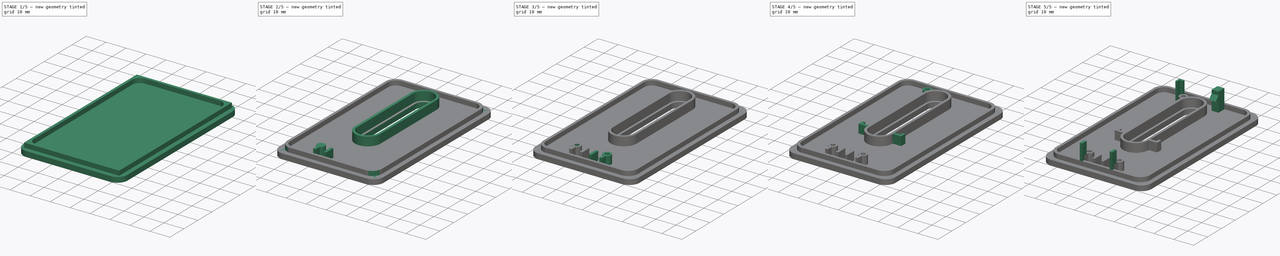
[diagram: build sequence overview — one tinted view per stage of 5, left to right]
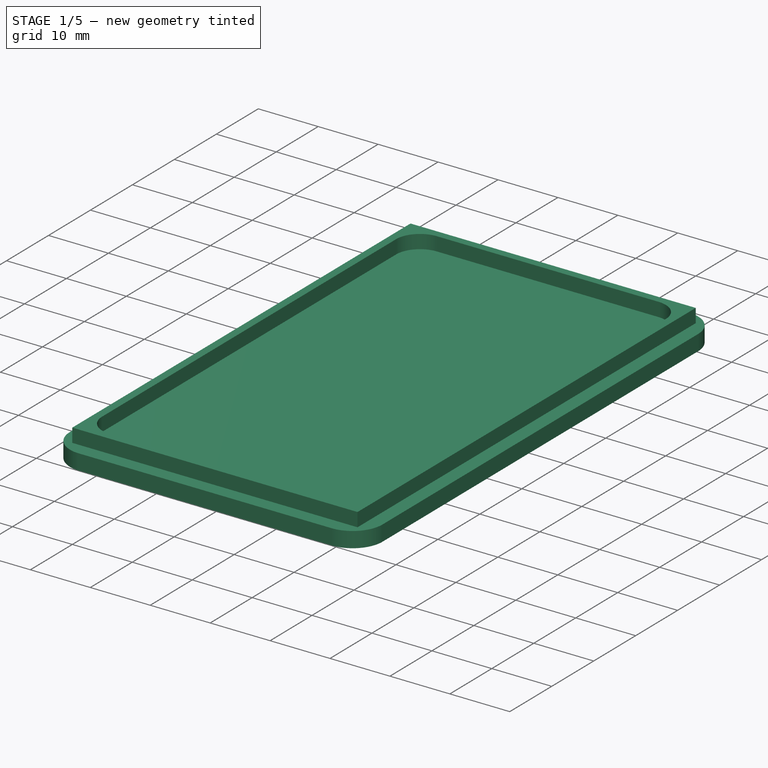
[diagram: stage 1 of 5 — iso view after this stage's code; geometry added in this stage tinted green]
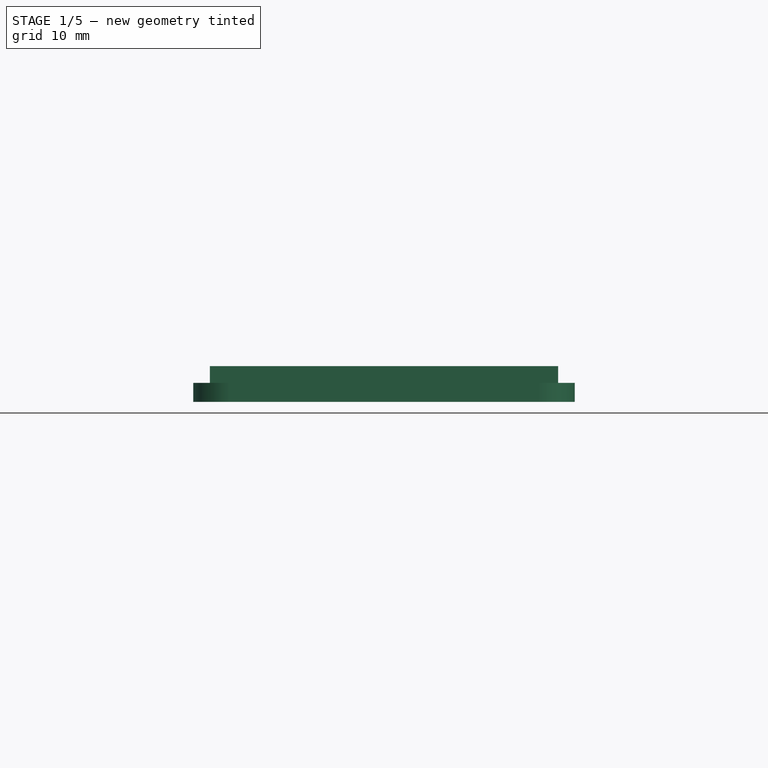
[diagram: stage 1 of 5 — front view after this stage's code; geometry added in this stage tinted green]
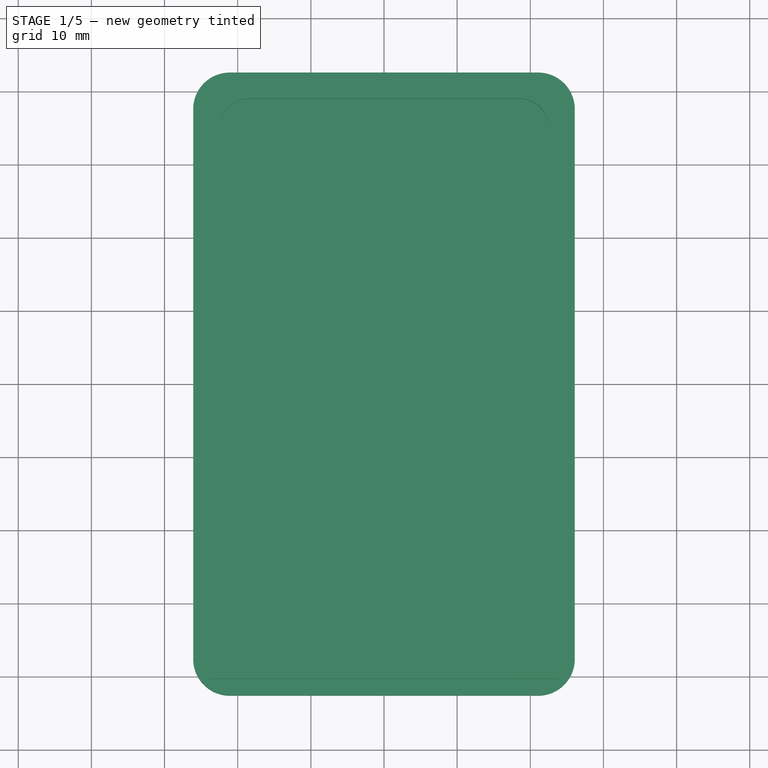
[diagram: stage 1 of 5 — top view after this stage's code; geometry added in this stage tinted green]
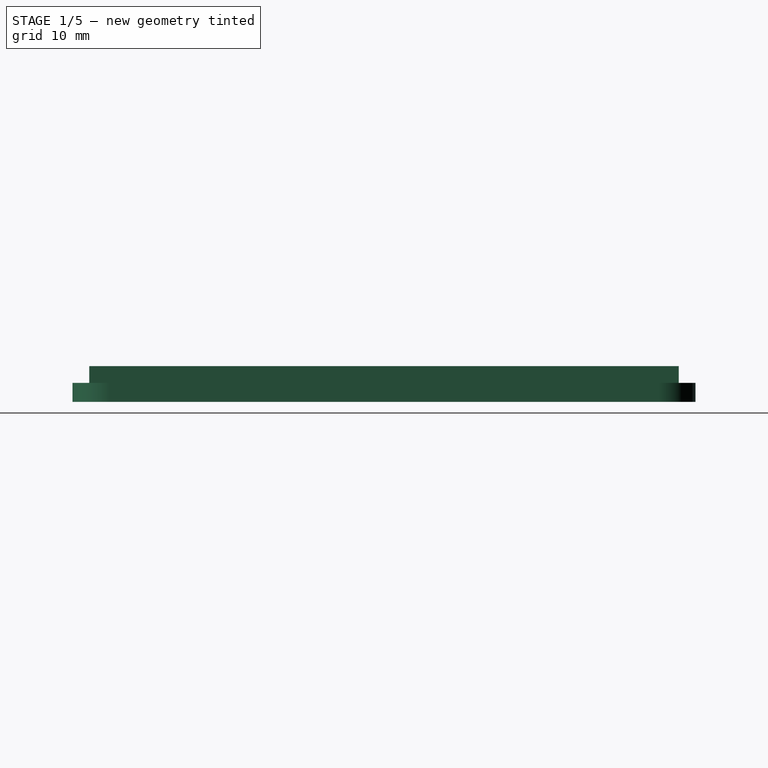
[diagram: stage 1 of 5 — right view after this stage's code; geometry added in this stage tinted green]
FCSTD DOCUMENT  (FreeCAD 0.20R29410 (Git))
Label: Front
License: All rights reserved
LicenseURL: http://en.wikipedia.org/wiki/All_rights_reserved
objects: Sketcher::SketchObject×10, PartDesign::Pad×9, PartDesign::Fillet×3, PartDesign::Mirrored×3, PartDesign::Hole×3, PartDesign::Pocket×1, PartDesign::Plane×1, PartDesign::Body×1
note: 47 computed .brp shape members not serialized (recipe doc carries the construction recipe); baked Part::Feature solids carry a one-line shape summary decoded from their .brp

FEATURE [Sketcher::SketchObject] Sketch
  FullyConstrained = true
  MapMode = 5
  Support = -> [XY_Plane]
  sketch-geometry (4):
    g0: LineSegment StartX=-26.08 StartY=42.58 StartZ=0 EndX=26.08 EndY=42.58 EndZ=0
    g1: LineSegment StartX=26.08 StartY=42.58 StartZ=0 EndX=26.08 EndY=-42.58 EndZ=0
    g2: LineSegment StartX=26.08 StartY=-42.58 StartZ=0 EndX=-26.08 EndY=-42.58 EndZ=0
    g3: LineSegment StartX=-26.08 StartY=-42.58 StartZ=0 EndX=-26.08 EndY=42.58 EndZ=0
  constraints (11):
    c: Coincident(g0,g1)
    c: Coincident(g1,g2)
    c: Coincident(g2,g3)
    c: Coincident(g3,g0)
    c: Horizontal(g0)
    c: Horizontal(g2)
    c: Vertical(g1)
    c: Vertical(g3)
    c: Symmetric(g1,g0,g-1)
    c: DistanceX(g0,g0) = 52.16
    c: DistanceY(g1,g1) = 85.16
FEATURE [PartDesign::Pad] Pad
  Direction = (0,0,1)
  Length = 2.6
  Length2 = 10
  Profile = -> Sketch
  ReferenceAxis = -> Sketch [N_Axis]
  Type = 0
FEATURE [Sketcher::SketchObject] Sketch001
  FullyConstrained = true
  MapMode = 5
  Placement = pos=(0,0,2.6) rot=(0,0,1;0rad)
  Support = -> [Pad]
  sketch-geometry (16):
    g0: LineSegment StartX=-23.8 StartY=40.3 StartZ=0 EndX=23.8 EndY=40.3 EndZ=0
    g1: LineSegment StartX=23.8 StartY=40.3 StartZ=0 EndX=23.8 EndY=-40.3 EndZ=0
    g2: LineSegment StartX=23.8 StartY=-40.3 StartZ=0 EndX=-23.8 EndY=-40.3 EndZ=0
    g3: LineSegment StartX=-23.8 StartY=-40.3 StartZ=0 EndX=-23.8 EndY=40.3 EndZ=0
    g4: LineSegment StartX=-22.5 StartY=39 StartZ=0 EndX=22.5 EndY=39 EndZ=0
    g5: LineSegment StartX=22.5 StartY=39 StartZ=0 EndX=22.5 EndY=-39 EndZ=0
    g6: LineSegment StartX=22.5 StartY=-39 StartZ=0 EndX=-22.5 EndY=-39 EndZ=0
    g7: LineSegment StartX=-22.5 StartY=-39 StartZ=0 EndX=-22.5 EndY=39 EndZ=0
    g8: LineSegment StartX=-23.8 StartY=40.3 StartZ=0 EndX=-22.5 EndY=40.3 EndZ=0
    g9: LineSegment StartX=-22.5 StartY=40.3 StartZ=0 EndX=-22.5 EndY=39 EndZ=0
    g10: LineSegment StartX=-22.5 StartY=39 StartZ=0 EndX=-23.8 EndY=39 EndZ=0
    g11: LineSegment StartX=-23.8 StartY=39 StartZ=0 EndX=-23.8 EndY=40.3 EndZ=0
    g12: LineSegment StartX=22.5 StartY=-39 StartZ=0 EndX=23.8 EndY=-39 EndZ=0
    g13: LineSegment StartX=23.8 StartY=-39 StartZ=0 EndX=23.8 EndY=-40.3 EndZ=0
    g14: LineSegment StartX=23.8 StartY=-40.3 StartZ=0 EndX=22.5 EndY=-40.3 EndZ=0
    g15: LineSegment StartX=22.5 StartY=-40.3 StartZ=0 EndX=22.5 EndY=-39 EndZ=0
  constraints (43):
    c: Coincident(g0,g1)
    c: Coincident(g1,g2)
    c: Coincident(g2,g3)
    c: Coincident(g3,g0)
    c: Horizontal(g0)
    c: Horizontal(g2)
    c: Vertical(g1)
    c: Vertical(g3)
    c: Coincident(g4,g5)
    c: Coincident(g5,g6)
    c: Coincident(g6,g7)
    c: Coincident(g7,g4)
    c: Horizontal(g4)
    c: Horizontal(g6)
    c: Vertical(g5)
    c: Vertical(g7)
    c: Coincident(g8,g9)
    c: Coincident(g9,g10)
    c: Coincident(g10,g11)
    c: Coincident(g11,g8)
    c: Horizontal(g8)
    c: Horizontal(g10)
    c: Vertical(g9)
    c: Vertical(g11)
    c: Coincident(g8,g0)
    c: Coincident(g9,g4)
    c: Coincident(g12,g13)
    c: Coincident(g13,g14)
    c: Coincident(g14,g15)
    c: Coincident(g15,g12)
    c: Horizontal(g12)
    c: Horizontal(g14)
    c: Vertical(g13)
    c: Vertical(g15)
    c: Coincident(g12,g5)
    c: Coincident(g13,g1)
    c: Equal(g12,g15)
    c: Equal(g15,g9)
    c: Equal(g9,g10)
    c: DistanceX(g10,g10) = 1.3
    c: Symmetric(g4,g5,g-1)
    c: DistanceY(g1,g1) = 80.6
    c: DistanceX(g0,g0) = 47.6
FEATURE [PartDesign::Pad] Pad001
  BaseFeature = -> Pad
  Direction = (0,0,1)
  Length = 2.3
  Length2 = 10
  Profile = -> Sketch001
  ReferenceAxis = -> Sketch001 [N_Axis]
  Type = 0
FEATURE [PartDesign::Fillet] Fillet
  Base = -> Pad001 [Edge8,Edge5,Edge2,Edge1]
  BaseFeature = -> Pad001
  Radius = 5
  SupportTransform = false
  UseAllEdges = false
FEATURE [PartDesign::Fillet] Fillet001
  Base = -> Fillet [Edge41,Edge44,Edge46,Edge42]
  BaseFeature = -> Fillet
  Radius = 4
  SupportTransform = false
  UseAllEdges = false
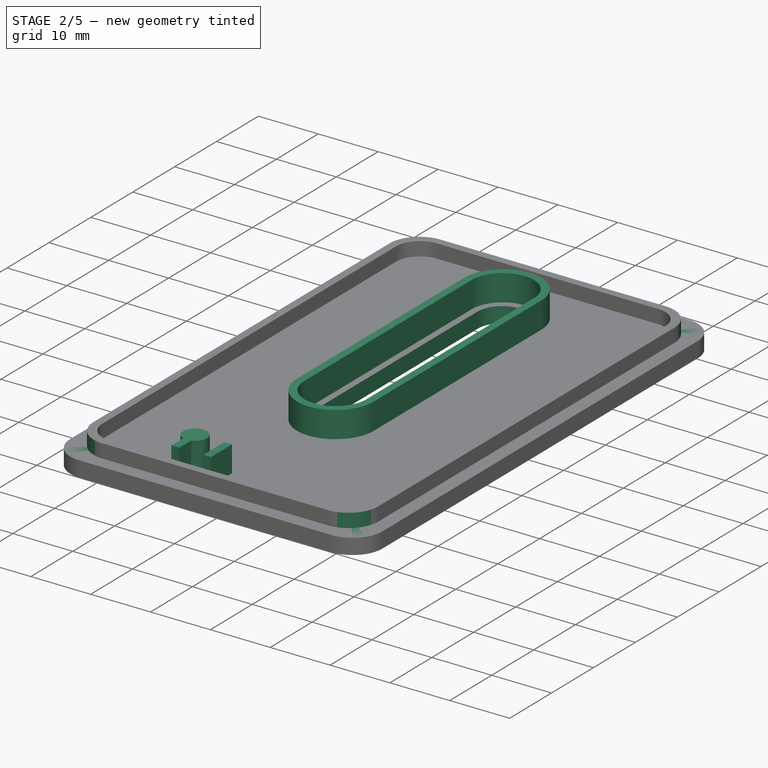
[diagram: stage 2 of 5 — iso view after this stage's code; geometry added in this stage tinted green]
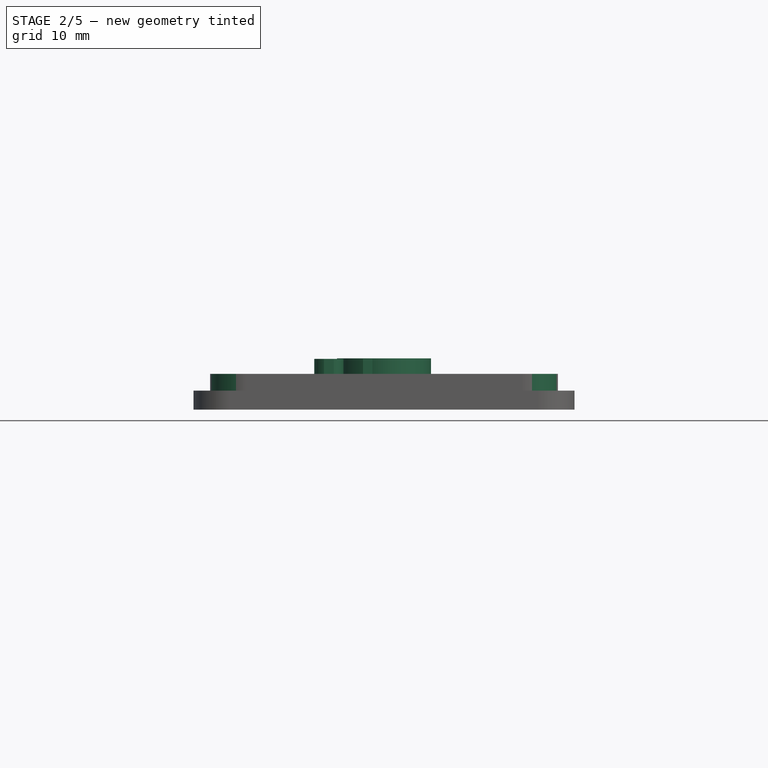
[diagram: stage 2 of 5 — front view after this stage's code; geometry added in this stage tinted green]
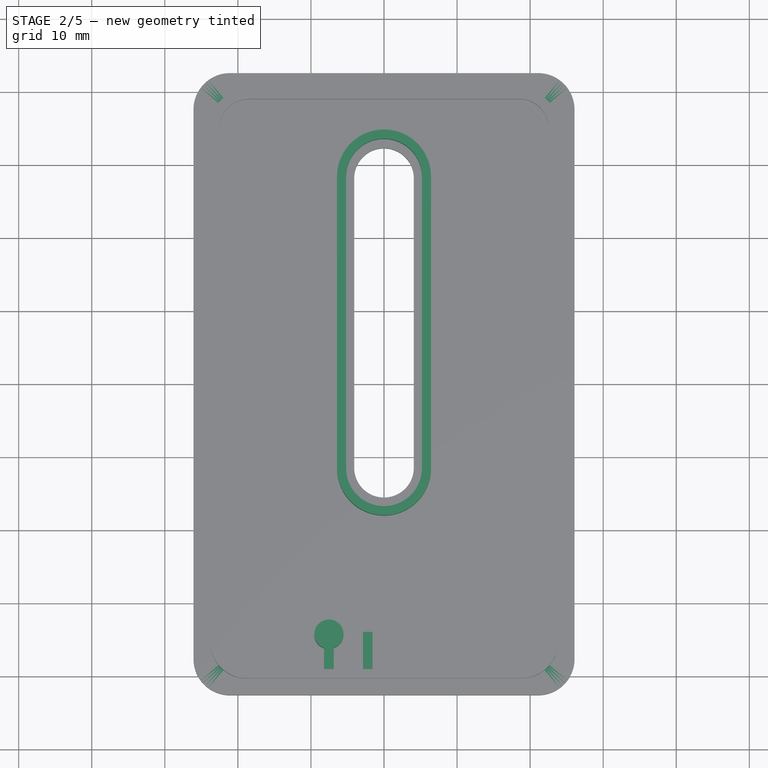
[diagram: stage 2 of 5 — top view after this stage's code; geometry added in this stage tinted green]
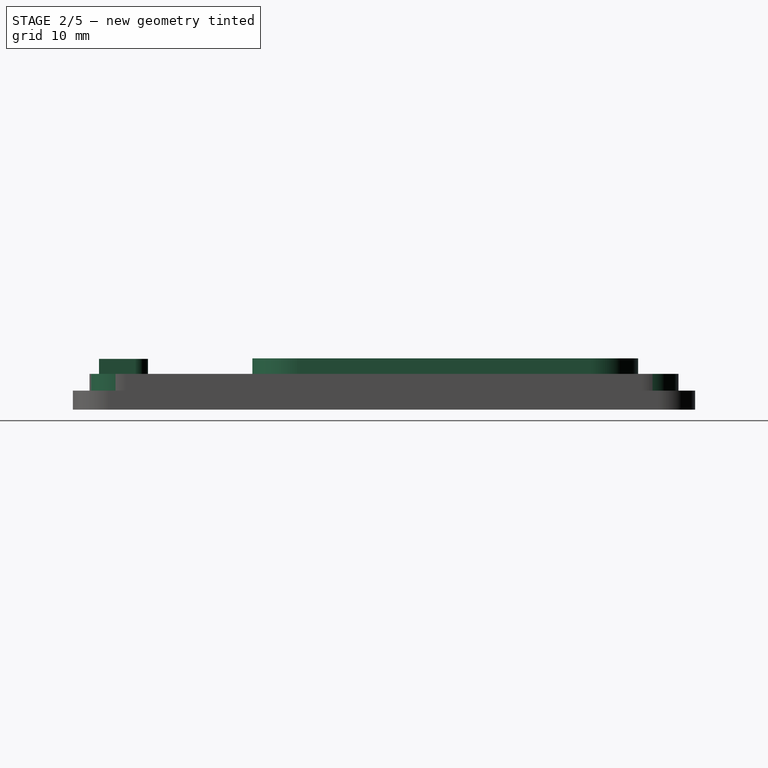
[diagram: stage 2 of 5 — right view after this stage's code; geometry added in this stage tinted green]
FEATURE [PartDesign::Fillet] Fillet002
  Base = -> Fillet001 [Edge34,Edge32,Edge30,Edge29]
  BaseFeature = -> Fillet001
  Radius = 5
  SupportTransform = false
  UseAllEdges = false
FEATURE [Sketcher::SketchObject] Sketch002
  ExternalGeometry = -> [Fillet002]
  FullyConstrained = true
  MapMode = 5
  Placement = pos=(0,0,2.6) rot=(0,0,1;0rad)
  Support = -> [Fillet002]
  sketch-geometry (7):
    g0: LineSegment StartX=-4.08 StartY=28.2 StartZ=0 EndX=4.08 EndY=28.2 EndZ=0
    g1: LineSegment StartX=4.08 StartY=28.2 StartZ=0 EndX=4.08 EndY=-11.44 EndZ=0
    g2: LineSegment StartX=4.08 StartY=-11.44 StartZ=0 EndX=-4.08 EndY=-11.44 EndZ=0
    g3: LineSegment StartX=-4.08 StartY=-11.44 StartZ=0 EndX=-4.08 EndY=28.2 EndZ=0
    g4: ArcOfCircle CenterX=2e-16 CenterY=28.2 CenterZ=0 NormalX=0 NormalY=0 NormalZ=1 AngleXU=0 Radius=4.08 StartAngle=0 EndAngle=3.14159
    g5: ArcOfCircle CenterX=-3e-16 CenterY=-11.44 CenterZ=0 NormalX=0 NormalY=0 NormalZ=1 AngleXU=0 Radius=4.08 StartAngle=3.14159 EndAngle=6.28319
    g6: GeomPoint X=0 Y=32.28 Z=0
  constraints (19):
    c: Coincident(g0,g1)
    c: Coincident(g1,g2)
    c: Coincident(g2,g3)
    c: Coincident(g3,g0)
    c: Horizontal(g2)
    c: Vertical(g1)
    c: Vertical(g3)
    c: Symmetric(g0,g0,g-2)
    c: PointOnObject(g4,g0)
    c: Coincident(g4,g0)
    c: Coincident(g4,g0)
    c: PointOnObject(g5,g2)
    c: Coincident(g5,g2)
    c: Coincident(g5,g1)
    c: DistanceX(g0,g0) = 8.16
    c: DistanceY(g1,g1) = 39.64
    c: PointOnObject(g6,g4)
    c: PointOnObject(g6,g-2)
    c: DistanceY(g6,g-3) = 10.3
FEATURE [PartDesign::Pocket] Pocket
  BaseFeature = -> Fillet002
  Direction = (0,0,-1)
  Length = 5
  Length2 = 5
  Profile = -> Sketch002
  ReferenceAxis = -> Sketch002 [N_Axis]
  Type = 0
FEATURE [Sketcher::SketchObject] Sketch003
  ExternalGeometry = -> [Pocket]
  FullyConstrained = true
  MapMode = 5
  Placement = pos=(0,0,2.6) rot=(0,0,1;0rad)
  Support = -> [Pocket]
  sketch-geometry (21):
    g0: LineSegment StartX=-6.43 StartY=28.35 StartZ=0 EndX=6.43 EndY=28.35 EndZ=0
    g1: LineSegment StartX=6.43 StartY=28.35 StartZ=0 EndX=6.43 EndY=-11.59 EndZ=0
    g2: LineSegment StartX=6.43 StartY=-11.59 StartZ=0 EndX=-6.43 EndY=-11.59 EndZ=0
    g3: LineSegment StartX=-6.43 StartY=-11.59 StartZ=0 EndX=-6.43 EndY=28.35 EndZ=0
    g4: ArcOfCircle CenterX=-1.98e-14 CenterY=-11.59 CenterZ=0 NormalX=0 NormalY=0 NormalZ=1 AngleXU=0 Radius=6.43 StartAngle=3.14159 EndAngle=6.28319
    g5: LineSegment StartX=-6.43 StartY=28.35 StartZ=0 EndX=-5.18 EndY=28.35 EndZ=0
    g6: LineSegment StartX=-5.18 StartY=28.35 StartZ=0 EndX=-5.18 EndY=27.1 EndZ=0
    g7: LineSegment StartX=-5.18 StartY=27.1 StartZ=0 EndX=-6.43 EndY=27.1 EndZ=0
    g8: LineSegment StartX=-6.43 StartY=27.1 StartZ=0 EndX=-6.43 EndY=28.35 EndZ=0
    g9: LineSegment StartX=6.43 StartY=-11.59 StartZ=0 EndX=5.18 EndY=-11.59 EndZ=0
    g10: LineSegment StartX=5.18 StartY=-11.59 StartZ=0 EndX=5.18 EndY=-10.34 EndZ=0
    g11: LineSegment StartX=5.18 StartY=-10.34 StartZ=0 EndX=6.43 EndY=-10.34 EndZ=0
    g12: LineSegment StartX=6.43 StartY=-10.34 StartZ=0 EndX=6.43 EndY=-11.59 EndZ=0
    g13: Circle CenterX=-1.95e-14 CenterY=8.38 CenterZ=0 NormalX=0 NormalY=0 NormalZ=1 AngleXU=0 Radius=20.2356
    g14: GeomPoint X=0 Y=-18.02 Z=0
    g15: GeomPoint X=0 Y=34.78 Z=0
    g16: LineSegment StartX=-5.18 StartY=28.35 StartZ=0 EndX=-5.18 EndY=-11.59 EndZ=0
    g17: LineSegment StartX=5.18 StartY=-11.59 StartZ=0 EndX=5.18 EndY=28.35 EndZ=0
    g18: ArcOfCircle CenterX=-1.99e-14 CenterY=28.35 CenterZ=0 NormalX=0 NormalY=0 NormalZ=1 AngleXU=0 Radius=6.43 StartAngle=0 EndAngle=3.14159
    g19: ArcOfCircle CenterX=-2e-14 CenterY=28.35 CenterZ=0 NormalX=0 NormalY=0 NormalZ=1 AngleXU=0 Radius=5.18 StartAngle=6e-16 EndAngle=3.14159
    g20: ArcOfCircle CenterX=-1.96e-14 CenterY=-11.59 CenterZ=0 NormalX=0 NormalY=0 NormalZ=1 AngleXU=0 Radius=5.18 StartAngle=3.14159 EndAngle=6.28319
  constraints (58):
    c: Coincident(g0,g1)
    c: Coincident(g1,g2)
    c: Coincident(g2,g3)
    c: Coincident(g3,g0)
    c: Horizontal(g0)
    c: Horizontal(g2)
    c: Vertical(g1)
    c: Vertical(g3)
    c: PointOnObject(g4,g2)
    c: Coincident(g4,g3)
    c: Coincident(g4,g1)
    c: Coincident(g5,g6)
    c: Coincident(g6,g7)
    c: Coincident(g7,g8)
    c: Coincident(g8,g5)
    c: Horizontal(g5)
    c: Horizontal(g7)
    c: Vertical(g6)
    c: Vertical(g8)
    c: Coincident(g5,g3)
    c: Coincident(g9,g10)
    c: Coincident(g10,g11)
    c: Coincident(g11,g12)
    c: Coincident(g12,g9)
    c: Horizontal(g9)
    c: Horizontal(g11)
    c: Vertical(g10)
    c: Vertical(g12)
    c: Coincident(g9,g1)
    c: Equal(g11,g10)
    c: Equal(g10,g6)
    c: Equal(g6,g7)
    c: DistanceX(g7,g7) = 1.25
    c: PointOnObject(g-3,g13)
    c: PointOnObject(g-4,g13)
    c: PointOnObject(g-4,g13)
    c: DistanceX(g0,g0) = 12.86
    c: PointOnObject(g14,g4)
    c: PointOnObject(g15,g-2)
    c: PointOnObject(g14,g-2)
    c: DistanceY(g14,g15) = 52.8
    c: Coincident(g16,g5)
    c: PointOnObject(g16,g2)
    c: Vertical(g16)
    c: Coincident(g17,g9)
    c: PointOnObject(g17,g0)
    c: Vertical(g17)
    c: PointOnObject(g18,g0)
    c: Coincident(g18,g3)
    c: Coincident(g18,g1)
    c: PointOnObject(g19,g0)
    c: Coincident(g19,g16)
    c: Coincident(g19,g17)
    c: Symmetric(g16,g17,g13)
    c: PointOnObject(g20,g2)
    c: Coincident(g20,g16)
    c: Coincident(g20,g17)
    c: PointOnObject(g15,g18)
FEATURE [PartDesign::Pad] Pad002
  BaseFeature = -> Pocket
  Direction = (0,0,1)
  Length = 4.42
  Length2 = 10
  Profile = -> Sketch003
  ReferenceAxis = -> Sketch003 [N_Axis]
  Type = 0
FEATURE [Sketcher::SketchObject] Sketch004
  ExternalGeometry = -> [Pad002]
  FullyConstrained = true
  MapMode = 5
  Placement = pos=(0,0,2.6) rot=(0,0,1;0rad)
  Support = -> [Pad002]
  sketch-geometry (9):
    g0: ArcOfCircle CenterX=-7.545 CenterY=-34.3 CenterZ=0 NormalX=0 NormalY=0 NormalZ=1 AngleXU=0 Radius=2 StartAngle=5.05134 EndAngle=10.6566
    g1: LineSegment StartX=-8.21 StartY=-36.1862 StartZ=0 EndX=-6.88 EndY=-36.1862 EndZ=0
    g2: LineSegment StartX=-6.88 StartY=-36.1862 StartZ=0 EndX=-6.88 EndY=-39 EndZ=0
    g3: LineSegment StartX=-6.88 StartY=-39 StartZ=0 EndX=-8.21 EndY=-39 EndZ=0
    g4: LineSegment StartX=-8.21 StartY=-39 StartZ=0 EndX=-8.21 EndY=-36.1862 EndZ=0
    g5: LineSegment StartX=-2.88 StartY=-39 StartZ=0 EndX=-1.58 EndY=-39 EndZ=0
    g6: LineSegment StartX=-1.58 StartY=-39 StartZ=0 EndX=-1.58 EndY=-34 EndZ=0
    g7: LineSegment StartX=-1.58 StartY=-34 StartZ=0 EndX=-2.88 EndY=-34 EndZ=0
    g8: LineSegment StartX=-2.88 StartY=-34 StartZ=0 EndX=-2.88 EndY=-39 EndZ=0
  constraints (28):
    c: Coincident(g1,g2)
    c: Coincident(g2,g3)
    c: Coincident(g3,g4)
    c: Coincident(g4,g1)
    c: Horizontal(g1)
    c: Horizontal(g3)
    c: Vertical(g2)
    c: Vertical(g4)
    c: Coincident(g0,g1)
    c: Coincident(g0,g1)
    c: PointOnObject(g2,g-3)
    c: DistanceX(g1,g1) = 1.33
    c: Diameter(g0) = 4
    c: DistanceY(g-4,g0) = 6
    c: DistanceY(g-4,g-3) = 1.3
    c: Coincident(g5,g6)
    c: Coincident(g6,g7)
    c: Coincident(g7,g8)
    c: Coincident(g8,g5)
    c: Horizontal(g5)
    c: Horizontal(g7)
    c: Vertical(g6)
    c: Vertical(g8)
    c: PointOnObject(g5,g-3)
    c: DistanceX(g7,g7) = 1.3
    c: DistanceY(g8,g8) = 5
    c: DistanceX(g0,g7) = 4
    c: DistanceX(g6,g-1) = 1.58
FEATURE [PartDesign::Pad] Pad003
  BaseFeature = -> Pad002
  Direction = (0,0,1)
  Length = 4.35
  Length2 = 10
  Profile = -> Sketch004
  ReferenceAxis = -> Sketch004 [N_Axis]
  Type = 0
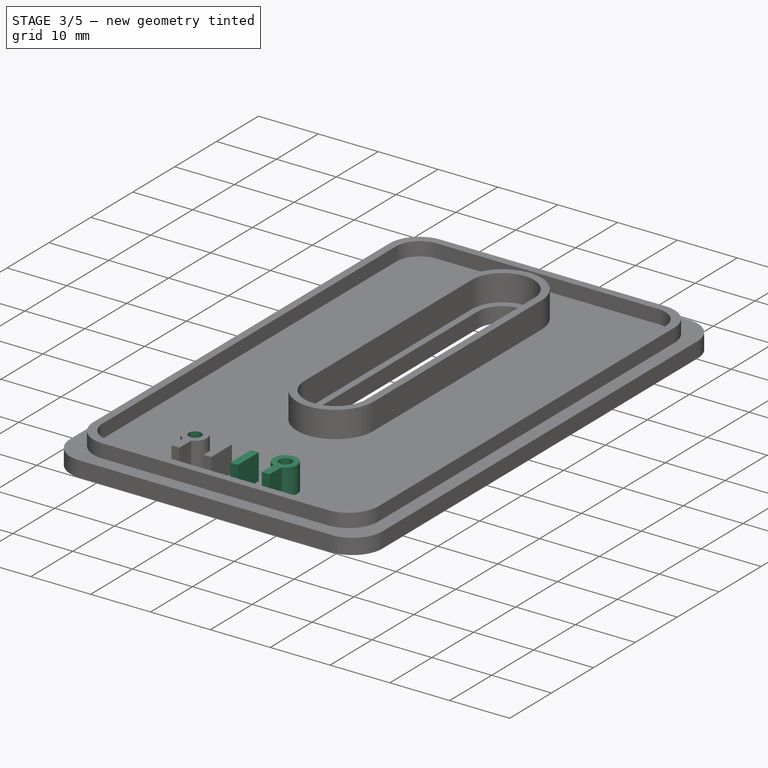
[diagram: stage 3 of 5 — iso view after this stage's code; geometry added in this stage tinted green]
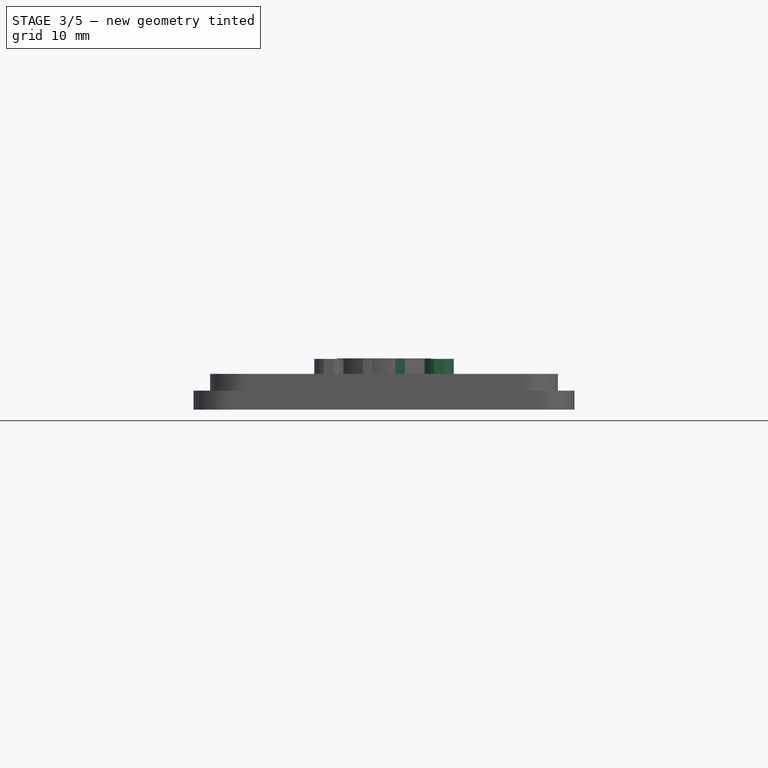
[diagram: stage 3 of 5 — front view after this stage's code; geometry added in this stage tinted green]
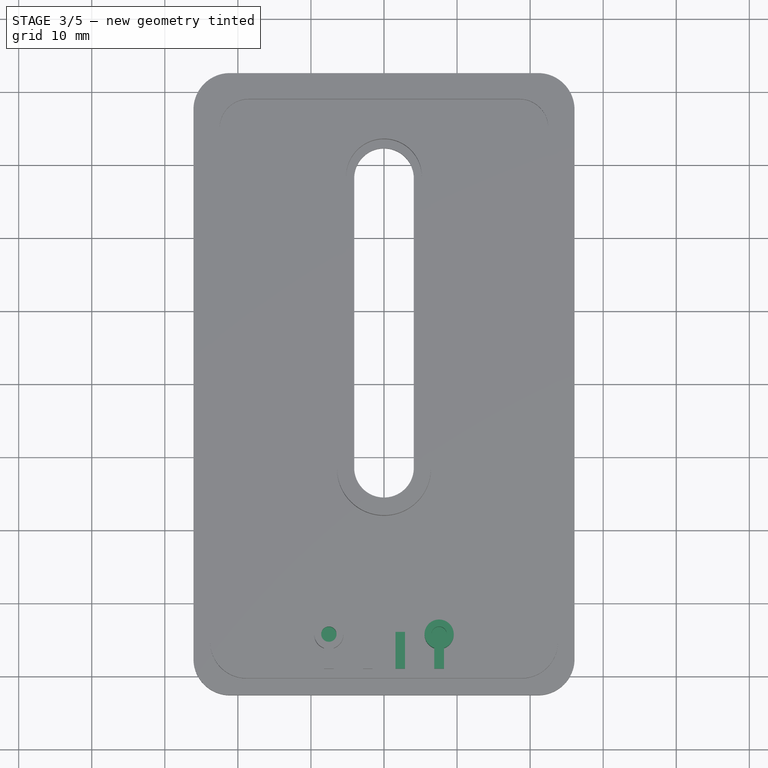
[diagram: stage 3 of 5 — top view after this stage's code; geometry added in this stage tinted green]
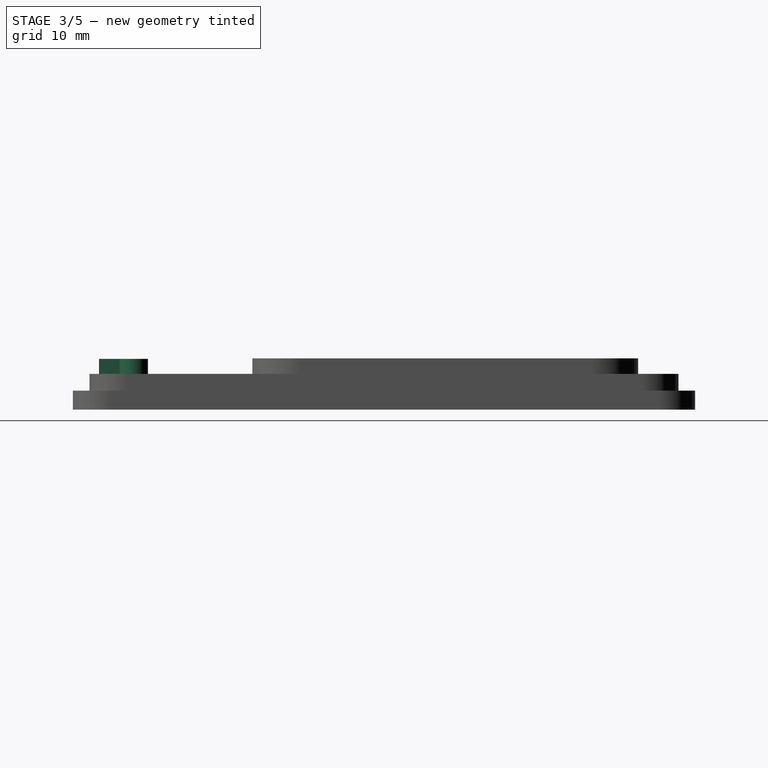
[diagram: stage 3 of 5 — right view after this stage's code; geometry added in this stage tinted green]
FEATURE [PartDesign::Mirrored] Mirrored
  BaseFeature = -> Pad003
  MirrorPlane = -> Sketch004 [V_Axis]
  Originals = -> [Pad003]
FEATURE [PartDesign::Hole] Hole
  BaseFeature = -> Mirrored
  CustomThreadClearance = 0
  Depth = 3
  DepthType = 0
  Diameter = 2.1
  DrillForDepth = false
  DrillPoint = 0
  DrillPointAngle = 118
  HoleCutCountersinkAngle = 90
  HoleCutCustomValues = false
  HoleCutDepth = 0
  HoleCutDiameter = 6.1
  HoleCutType = 0
  ModelThread = false
  Profile = -> Mirrored [Face39]
  Tapered = false
  TaperedAngle = 90
  ThreadClass = 0
  ThreadDepth = 3
  ThreadDepthType = 0
  ThreadDirection = 0
  ThreadFit = 0
  ThreadSize = 5
  ThreadType = 1
  Threaded = false
  UseCustomThreadClearance = false
FEATURE [PartDesign::Hole] Hole001
  BaseFeature = -> Hole
  CustomThreadClearance = 0
  Depth = 3
  DepthType = 0
  Diameter = 2.1
  DrillForDepth = false
  DrillPoint = 0
  DrillPointAngle = 118
  HoleCutCountersinkAngle = 90
  HoleCutCustomValues = false
  HoleCutDepth = 0
  HoleCutDiameter = 6.1
  HoleCutType = 0
  ModelThread = false
  Profile = -> Hole [Face29]
  Tapered = false
  TaperedAngle = 90
  ThreadClass = 0
  ThreadDepth = 3
  ThreadDepthType = 0
  ThreadDirection = 0
  ThreadFit = 0
  ThreadSize = 5
  ThreadType = 1
  Threaded = false
  UseCustomThreadClearance = false
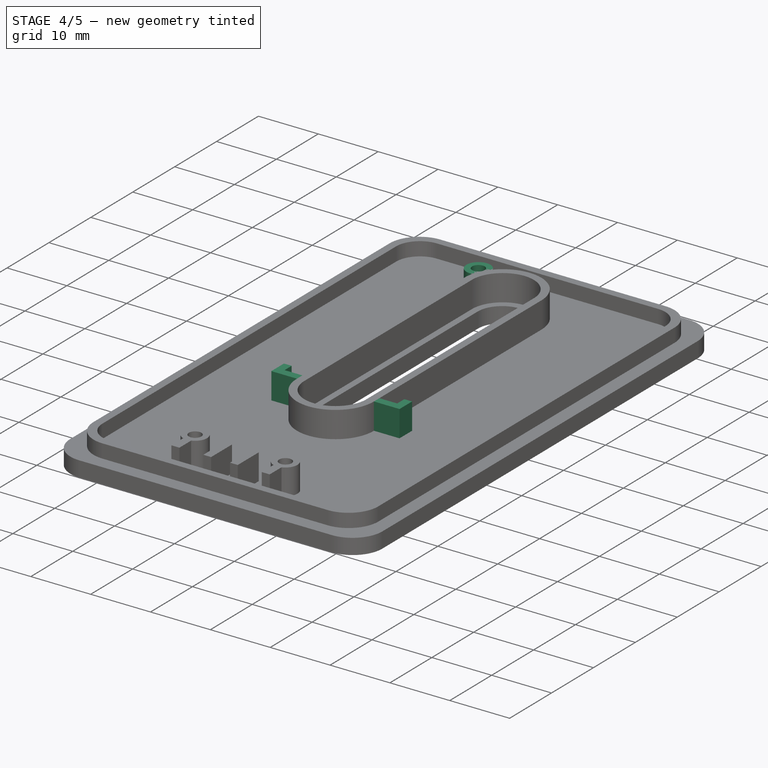
[diagram: stage 4 of 5 — iso view after this stage's code; geometry added in this stage tinted green]
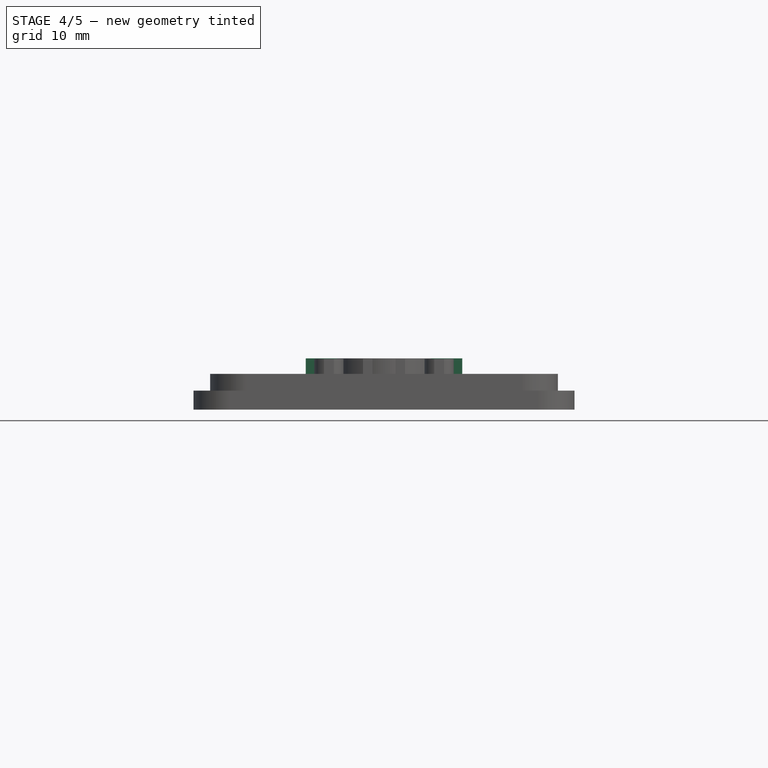
[diagram: stage 4 of 5 — front view after this stage's code; geometry added in this stage tinted green]
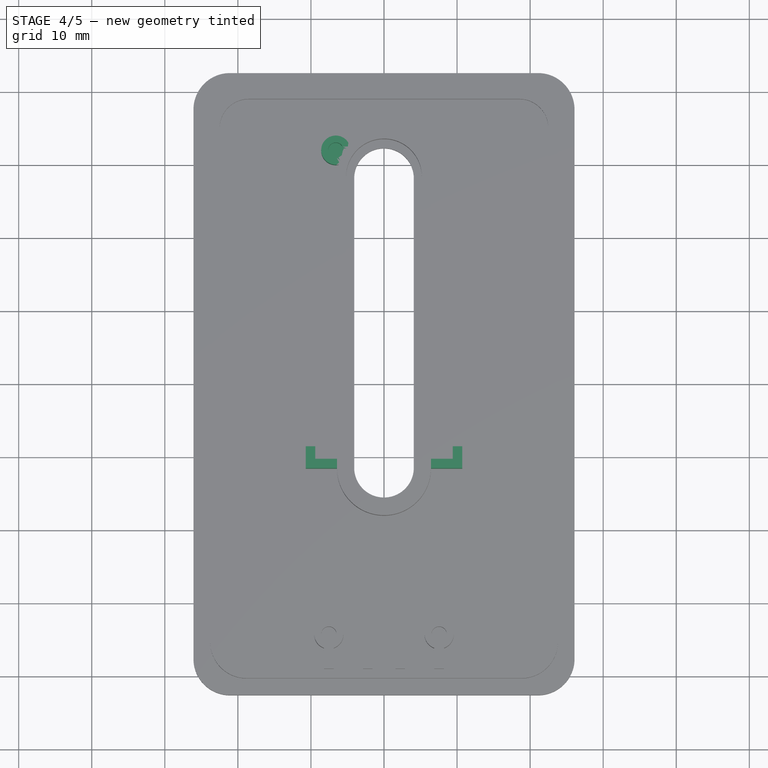
[diagram: stage 4 of 5 — top view after this stage's code; geometry added in this stage tinted green]
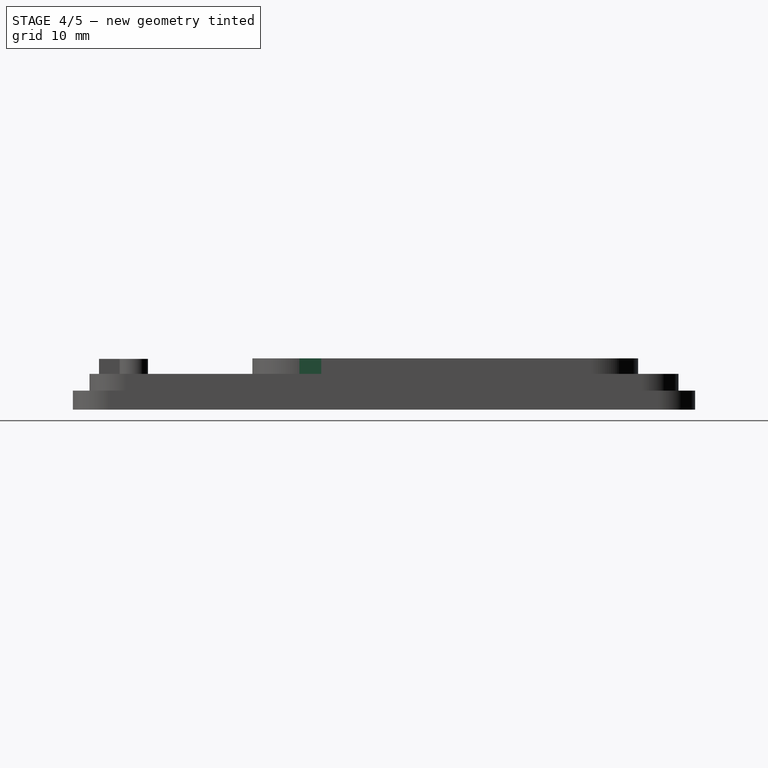
[diagram: stage 4 of 5 — right view after this stage's code; geometry added in this stage tinted green]
FEATURE [Sketcher::SketchObject] Sketch005
  ExternalGeometry = -> [Hole001]
  FullyConstrained = true
  MapMode = 5
  Placement = pos=(0,0,2.6) rot=(0,0,1;0rad)
  Support = -> [Hole001]
  sketch-geometry (10):
    g0: LineSegment StartX=-6.43 StartY=-11.59 StartZ=0 EndX=-10.71 EndY=-11.59 EndZ=0
    g1: LineSegment StartX=-10.71 StartY=-11.59 StartZ=0 EndX=-10.71 EndY=-8.59 EndZ=0
    g2: LineSegment StartX=-10.71 StartY=-8.59 StartZ=0 EndX=-9.41 EndY=-8.59 EndZ=0
    g3: LineSegment StartX=-9.41 StartY=-8.59 StartZ=0 EndX=-9.41 EndY=-10.29 EndZ=0
    g4: LineSegment StartX=-9.41 StartY=-10.29 StartZ=0 EndX=-6.43 EndY=-10.29 EndZ=0
    g5: LineSegment StartX=-6.43 StartY=-10.29 StartZ=0 EndX=-6.43 EndY=-11.59 EndZ=0
    g6: LineSegment StartX=-9.41 StartY=-10.29 StartZ=0 EndX=-10.71 EndY=-10.29 EndZ=0
    g7: LineSegment StartX=-10.71 StartY=-10.29 StartZ=0 EndX=-10.71 EndY=-11.59 EndZ=0
    g8: LineSegment StartX=-10.71 StartY=-11.59 StartZ=0 EndX=-9.41 EndY=-11.59 EndZ=0
    g9: LineSegment StartX=-9.41 StartY=-11.59 StartZ=0 EndX=-9.41 EndY=-10.29 EndZ=0
  constraints (27):
    c: Coincident(g-3,g0)
    c: Horizontal(g0)
    c: Coincident(g0,g1)
    c: Vertical(g1)
    c: Coincident(g1,g2)
    c: Horizontal(g2)
    c: Coincident(g2,g3)
    c: Vertical(g3)
    c: Coincident(g3,g4)
    c: PointOnObject(g4,g-3)
    c: Horizontal(g4)
    c: Coincident(g4,g5)
    c: Coincident(g5,g0)
    c: Coincident(g6,g7)
    c: Coincident(g7,g8)
    c: Coincident(g8,g9)
    c: Coincident(g9,g6)
    c: Horizontal(g6)
    c: Horizontal(g8)
    c: Vertical(g7)
    c: Vertical(g9)
    c: Coincident(g6,g3)
    c: Coincident(g7,g0)
    c: Equal(g6,g9)
    c: DistanceX(g6,g6) = 1.3
    c: DistanceY(g1,g1) = 3
    c: DistanceX(g0,g0) = 4.28
FEATURE [PartDesign::Pad] Pad004
  BaseFeature = -> Hole001
  Direction = (0,0,1)
  Length = 10
  Length2 = 10
  Profile = -> Sketch005
  ReferenceAxis = -> Sketch005 [N_Axis]
  Type = 3
  UpToFace = -> Hole001 [Face59]
FEATURE [Sketcher::SketchObject] Sketch006
  ExternalGeometry = -> [Pad004]
  FullyConstrained = true
  MapMode = 5
  Placement = pos=(0,0,2.6) rot=(0,0,1;0rad)
  Support = -> [Pad004]
  sketch-geometry (1):
    g0: Circle CenterX=-6.6 CenterY=31.95 CenterZ=0 NormalX=0 NormalY=0 NormalZ=1 AngleXU=0 Radius=2
  constraints (3):
    c: Diameter(g0) = 4
    c: DistanceX(g-4,g0) = 15.9
    c: DistanceY(g0,g-3) = 8.35
FEATURE [PartDesign::Mirrored] Mirrored001
  BaseFeature = -> Pad004
  MirrorPlane = -> Sketch005 [V_Axis]
  Originals = -> [Pad004]
FEATURE [PartDesign::Pad] Pad005
  BaseFeature = -> Mirrored001
  Direction = (0,0,1)
  Length = 10
  Length2 = 10
  Profile = -> Sketch006
  ReferenceAxis = -> Sketch006 [N_Axis]
  Type = 3
  UpToFace = -> Mirrored001 [Face69]
FEATURE [PartDesign::Hole] Hole002
  BaseFeature = -> Pad005
  CustomThreadClearance = 0
  Depth = 3
  DepthType = 0
  Diameter = 2.1
  DrillForDepth = false
  DrillPoint = 0
  DrillPointAngle = 118
  HoleCutCountersinkAngle = 90
  HoleCutCustomValues = false
  HoleCutDepth = 0
  HoleCutDiameter = 6.1
  HoleCutType = 0
  ModelThread = false
  Profile = -> Pad005 [Face72]
  Tapered = false
  TaperedAngle = 90
  ThreadClass = 0
  ThreadDepth = 3
  ThreadDepthType = 0
  ThreadDirection = 0
  ThreadFit = 0
  ThreadSize = 5
  ThreadType = 1
  Threaded = false
  UseCustomThreadClearance = false
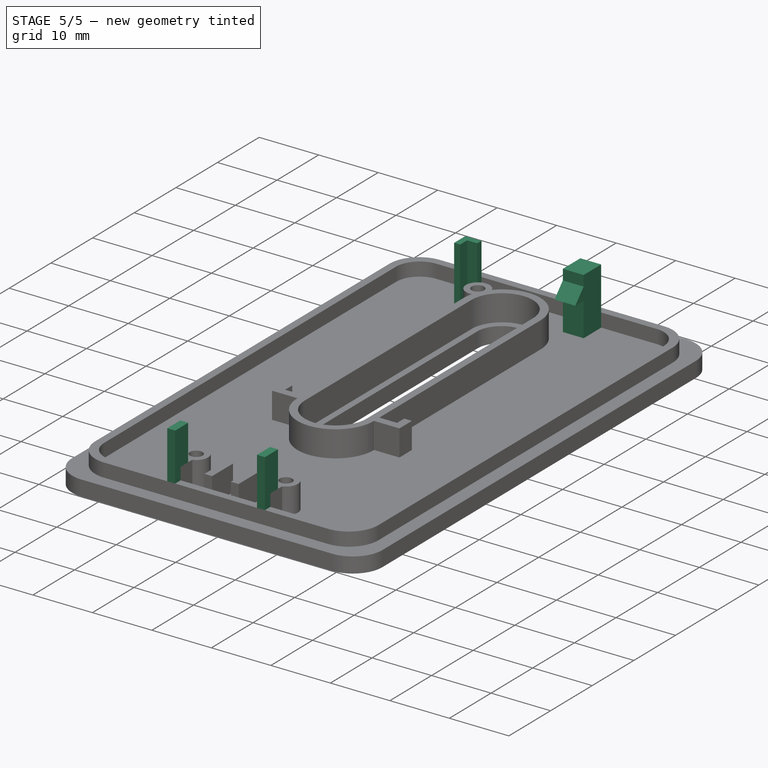
[diagram: stage 5 of 5 — iso view after this stage's code; geometry added in this stage tinted green]
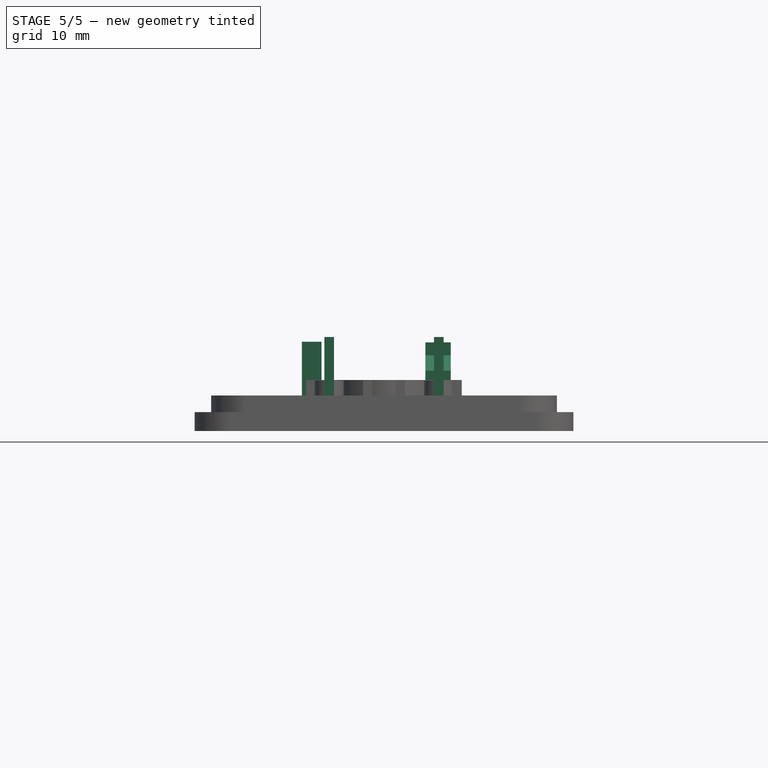
[diagram: stage 5 of 5 — front view after this stage's code; geometry added in this stage tinted green]
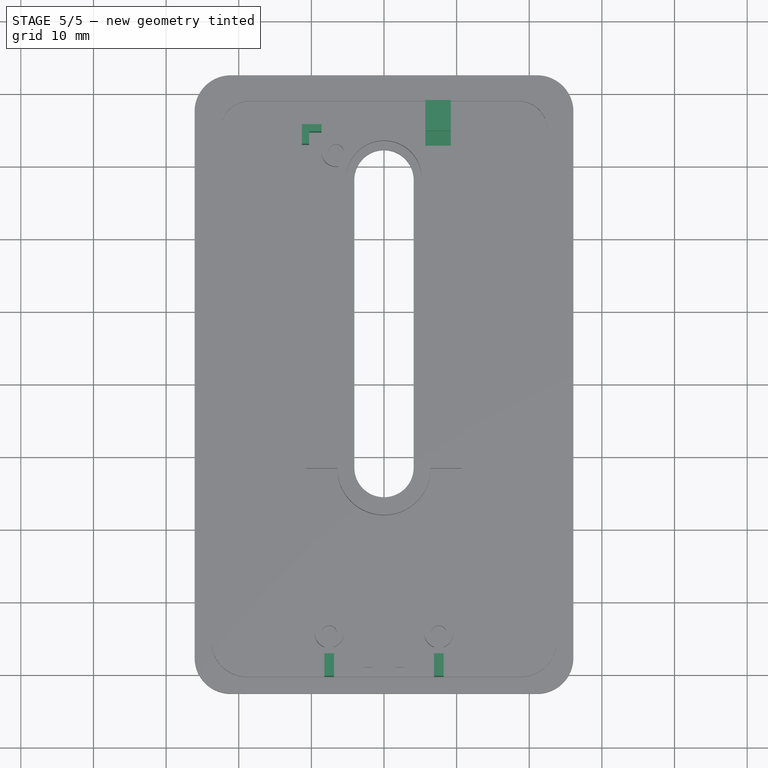
[diagram: stage 5 of 5 — top view after this stage's code; geometry added in this stage tinted green]
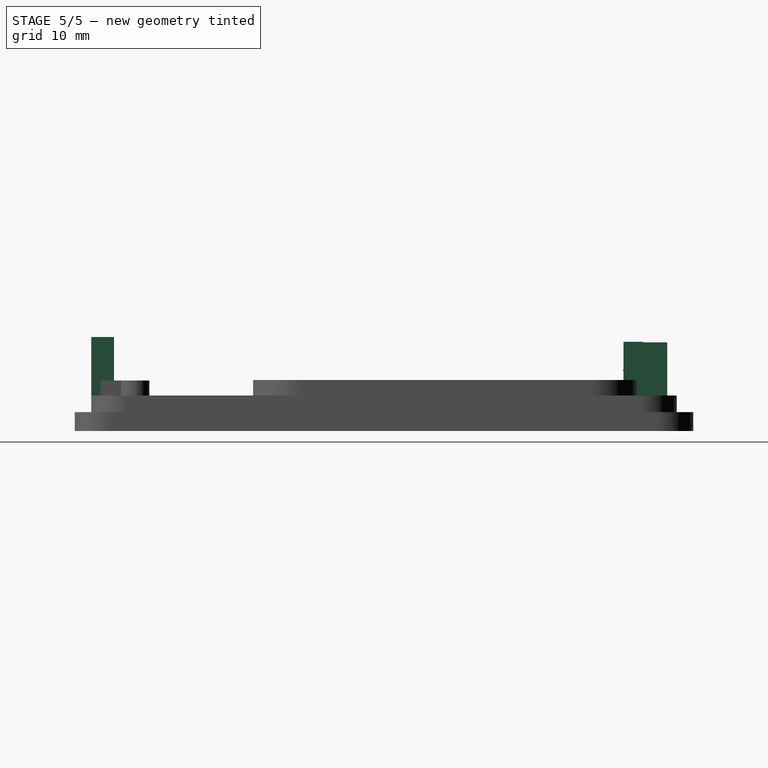
[diagram: stage 5 of 5 — right view after this stage's code; geometry added in this stage tinted green]
FEATURE [Sketcher::SketchObject] Sketch007
  ExternalGeometry = -> [Hole002]
  FullyConstrained = true
  MapMode = 5
  Placement = pos=(0,0,2.6) rot=(0,0,1;0rad)
  Support = -> [Hole002]
  sketch-geometry (10):
    g0: LineSegment StartX=-8.6 StartY=35.68 StartZ=0 EndX=-11.3 EndY=35.68 EndZ=0
    g1: LineSegment StartX=-11.3 StartY=35.68 StartZ=0 EndX=-11.3 EndY=32.98 EndZ=0
    g2: LineSegment StartX=-11.3 StartY=32.98 StartZ=0 EndX=-10.3 EndY=32.98 EndZ=0
    g3: LineSegment StartX=-10.3 StartY=32.98 StartZ=0 EndX=-10.3 EndY=34.68 EndZ=0
    g4: LineSegment StartX=-10.3 StartY=34.68 StartZ=0 EndX=-8.6 EndY=34.68 EndZ=0
    g5: LineSegment StartX=-8.6 StartY=34.68 StartZ=0 EndX=-8.6 EndY=35.68 EndZ=0
    g6: LineSegment StartX=-11.3 StartY=35.68 StartZ=0 EndX=-10.3 EndY=35.68 EndZ=0
    g7: LineSegment StartX=-10.3 StartY=35.68 StartZ=0 EndX=-10.3 EndY=34.68 EndZ=0
    g8: LineSegment StartX=-10.3 StartY=34.68 StartZ=0 EndX=-11.3 EndY=34.68 EndZ=0
    g9: LineSegment StartX=-11.3 StartY=34.68 StartZ=0 EndX=-11.3 EndY=35.68 EndZ=0
  constraints (28):
    c: Horizontal(g0)
    c: Coincident(g0,g1)
    c: Vertical(g1)
    c: Coincident(g1,g2)
    c: Horizontal(g2)
    c: Coincident(g2,g3)
    c: Vertical(g3)
    c: Coincident(g3,g4)
    c: Horizontal(g4)
    c: Coincident(g4,g5)
    c: Coincident(g5,g0)
    c: Vertical(g5)
    c: DistanceX(g0,g0) = 2.7
    c: DistanceY(g1,g1) = 2.7
    c: DistanceY(g0,g-4) = 3.32
    c: DistanceX(g-3,g1) = 11.2
    c: Coincident(g6,g7)
    c: Coincident(g7,g8)
    c: Coincident(g8,g9)
    c: Coincident(g9,g6)
    c: Horizontal(g6)
    c: Horizontal(g8)
    c: Vertical(g7)
    c: Vertical(g9)
    c: Coincident(g6,g0)
    c: Coincident(g7,g3)
    c: Equal(g7,g8)
    c: DistanceY(g7,g7) = 1
FEATURE [PartDesign::Pad] Pad006
  BaseFeature = -> Hole002
  Direction = (0,0,1)
  Length = 9.7
  Length2 = 10
  Profile = -> Sketch007
  ReferenceAxis = -> Sketch007 [N_Axis]
  Type = 0
FEATURE [PartDesign::Plane] DatumPlane
  AttachmentOffset = pos=(0,0,-16.36) rot=(0,0,1;0rad)
  Length = 98.2107
  MapMode = 5
  Placement = pos=(7.44,0,0) rot=(0.57735,0.57735,0.57735;2.0944rad)
  ResizeMode = 0
  Support = -> [Pad006]
  Width = 63.0507
FEATURE [Sketcher::SketchObject] Sketch008
  ExternalGeometry = -> [Pad006]
  FullyConstrained = true
  MapMode = 5
  Placement = pos=(7.44,0,0) rot=(0.57735,0.57735,0.57735;2.0944rad)
  Support = -> [DatumPlane]
  sketch-geometry (7):
    g0: LineSegment StartX=39 StartY=2.6 StartZ=0 EndX=39 EndY=12.2 EndZ=0
    g1: LineSegment StartX=39 StartY=12.2 StartZ=0 EndX=34.8 EndY=12.2 EndZ=0
    g2: LineSegment StartX=34.8 StartY=12.2 StartZ=0 EndX=34.8 EndY=10.44 EndZ=0
    g3: LineSegment StartX=34.8 StartY=10.44 StartZ=0 EndX=32.8 EndY=8.3 EndZ=0
    g4: LineSegment StartX=32.8 StartY=8.3 StartZ=0 EndX=34.8 EndY=8.3 EndZ=0
    g5: LineSegment StartX=34.8 StartY=8.3 StartZ=0 EndX=34.8 EndY=2.6 EndZ=0
    g6: LineSegment StartX=34.8 StartY=2.6 StartZ=0 EndX=39 EndY=2.6 EndZ=0
  constraints (20):
    c: Vertical(g0)
    c: Coincident(g0,g1)
    c: Horizontal(g1)
    c: Coincident(g1,g2)
    c: Vertical(g2)
    c: Coincident(g2,g3)
    c: Coincident(g3,g4)
    c: Horizontal(g4)
    c: Coincident(g4,g5)
    c: PointOnObject(g5,g-3)
    c: Vertical(g5)
    c: Coincident(g5,g6)
    c: Coincident(g6,g0)
    c: DistanceX(g1,g1) = 4.2
    c: Coincident(g0,g-4)
    c: Equal(g6,g1)
    c: DistanceY(g2,g2) = 1.76
    c: DistanceX(g4,g4) = 2
    c: DistanceY(g5,g5) = 5.7
    c: DistanceY(g0,g0) = 9.6
FEATURE [PartDesign::Pad] Pad007
  BaseFeature = -> Pad006
  Direction = (1,0,0)
  Length = 3.5
  Length2 = 10
  Midplane = true
  Profile = -> Sketch008
  ReferenceAxis = -> Sketch008 [N_Axis]
  Type = 0
FEATURE [Sketcher::SketchObject] Sketch009
  ExternalGeometry = -> [Pad007]
  FullyConstrained = true
  MapMode = 5
  Placement = pos=(0,0,6.95) rot=(0,0,1;0rad)
  Support = -> [Pad007]
  sketch-geometry (4):
    g0: LineSegment StartX=-6.88 StartY=-37.18 StartZ=0 EndX=-8.21 EndY=-37.18 EndZ=0
    g1: LineSegment StartX=-8.21 StartY=-37.18 StartZ=0 EndX=-8.21 EndY=-40.3 EndZ=0
    g2: LineSegment StartX=-8.21 StartY=-40.3 StartZ=0 EndX=-6.88 EndY=-40.3 EndZ=0
    g3: LineSegment StartX=-6.88 StartY=-40.3 StartZ=0 EndX=-6.88 EndY=-37.18 EndZ=0
  constraints (12):
    c: Coincident(g0,g1)
    c: Coincident(g1,g2)
    c: Coincident(g2,g3)
    c: Coincident(g3,g0)
    c: Horizontal(g0)
    c: Horizontal(g2)
    c: Vertical(g1)
    c: Vertical(g3)
    c: PointOnObject(g0,g-4)
    c: PointOnObject(g1,g-3)
    c: PointOnObject(g0,g-5)
    c: DistanceY(g3,g3) = 3.12
FEATURE [PartDesign::Pad] Pad008
  BaseFeature = -> Pad007
  Direction = (0,0,1)
  Length = 6
  Length2 = 3
  Profile = -> Sketch009
  ReferenceAxis = -> Sketch009 [N_Axis]
  Type = 4
FEATURE [PartDesign::Mirrored] Mirrored002
  BaseFeature = -> Pad008
  MirrorPlane = -> Sketch009 [V_Axis]
  Originals = -> [Pad008]
FEATURE [PartDesign::Body] Body  label="Front"
  Group = -> [Sketch,Pad,Sketch001,Pad001,Fillet,Fillet001,Fillet002,Sketch002,Pocket,Sketch003,Pad002,Sketch004,Pad003,Mirrored,Hole,Hole001,Sketch005,Pad004,Sketch006,Mirrored001,Pad005,Hole002,Sketch007,Pad006,DatumPlane,Sketch008,Pad007,Sketch009,Pad008,Mirrored002]
  Origin = -> Origin
  Tip = -> Mirrored002
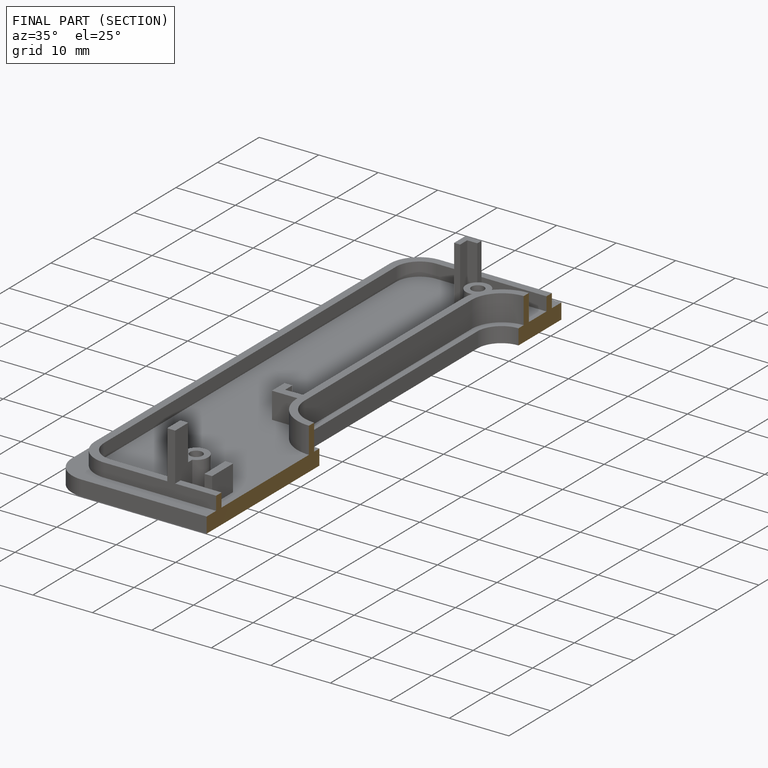
[diagram: finished part — half-section view (interior)]
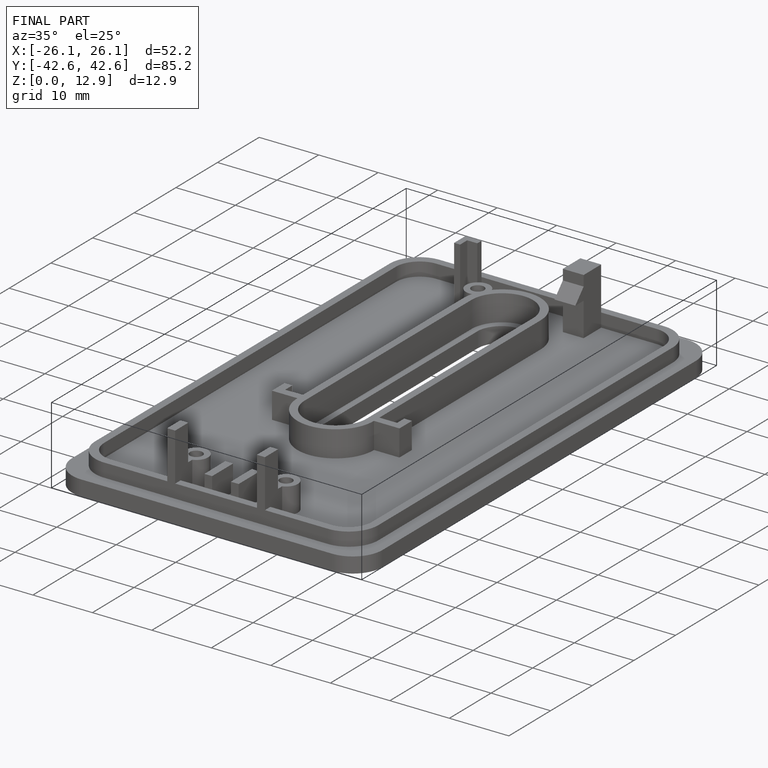
[diagram: finished part — iso view with bounding-box wireframe]
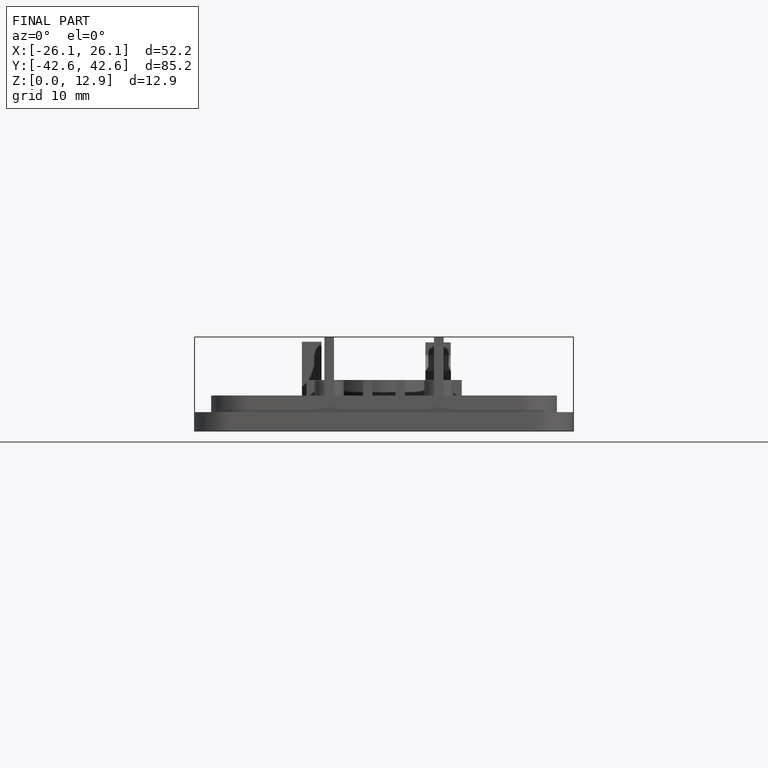
[diagram: finished part — front view with bounding-box wireframe]
